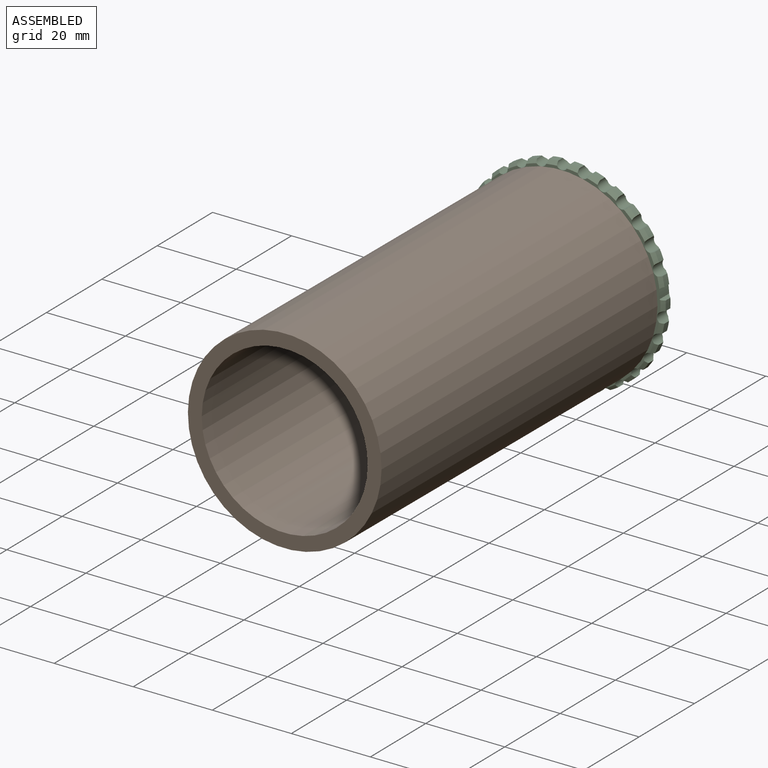
[diagram: assembled view]
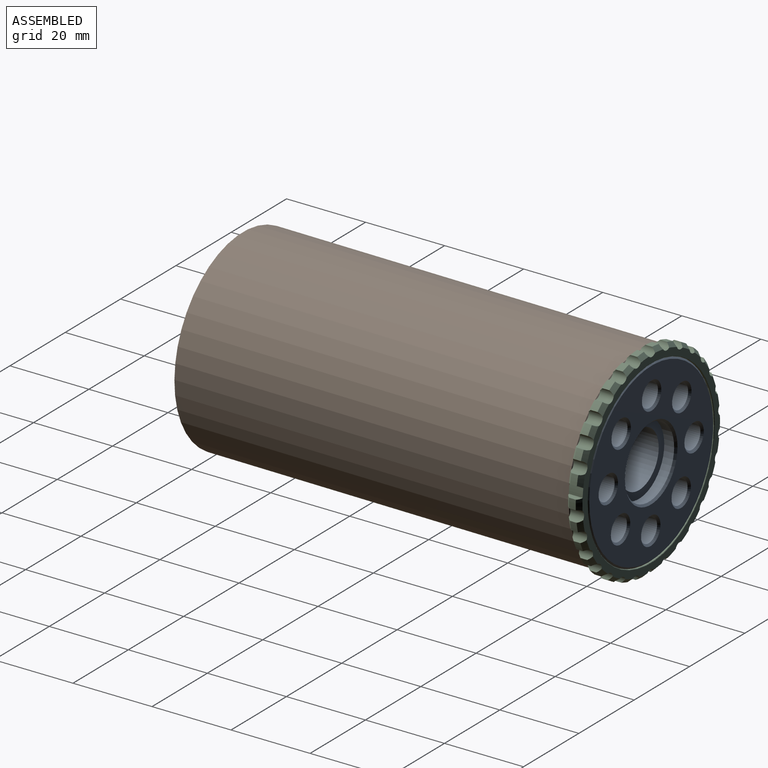
[diagram: assembled view, second angle]
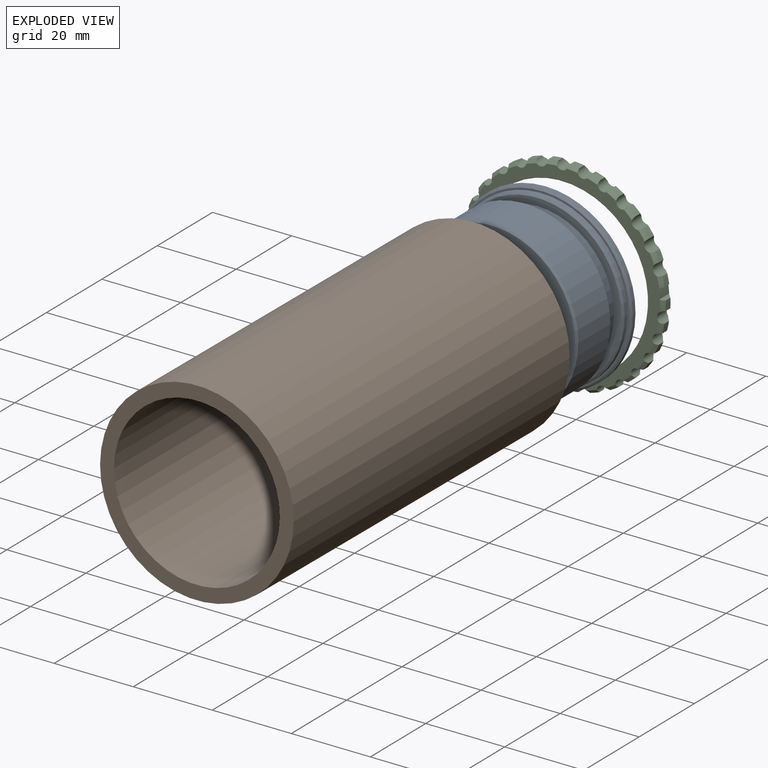
[diagram: exploded view]
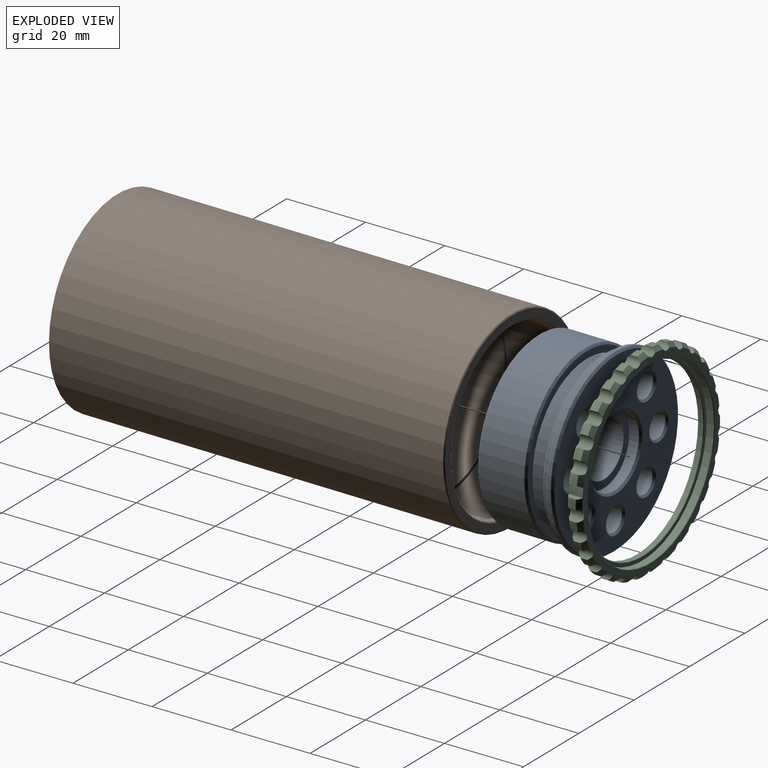
[diagram: exploded view, second angle]
ASSEMBLY  parts=3 mates=2
PART A: 42 faces, bbox 45.7x45.7x20 mm
  f0: cylinder r=19.5mm len=39mm, axis (0,0,1), area 490.1mm2, adj f1,f8
  f1: plane 42.44x42.44mm, normal (0,0,1), area 220mm2, adj f0,f39
  f2: cylinder r=21.72mm len=43.44mm, axis (0,0,1), area 1569.4mm2, adj f38,f39
  f3: plane 42.44x42.44mm, normal (0,0,-1), area 1260.7mm2, adj f9,f38
  f4: plane 44.74x44.74mm, normal (0,0,1), area 980.7mm2, adj f28,f29,f30,f31,f32,f33,f34,f35
  f5: cylinder r=22.87mm len=45.74mm, axis (0,0,1), area 143.7mm2, adj f37,f41
  f6: plane 44.74x44.74mm, normal (0,0,-1), area 69.5mm2, adj f7,f41
  f7: cylinder r=21.87mm len=43.74mm, axis (0,0,1), area 137.4mm2, adj f6,f40
  f8: plane 42.74x42.74mm, normal (0,0,-1), area 240.1mm2, adj f0,f40
  f9: cylinder r=7mm len=17mm, axis (0,0,1), area 747.7mm2, adj f3,f27
  f10: cylinder r=3mm len=14.5mm, axis (0,0,1), area 273.3mm2, adj f11,f35
  f11: plane 6x6mm, normal (0,0,1), area 28.3mm2, adj f10
  f12: cylinder r=3mm len=14.5mm, axis (0,0,1), area 273.3mm2, adj f13,f36
  f13: plane 6x6mm, normal (0,0,1), area 28.3mm2, adj f12
  f14: cylinder r=3mm len=14.5mm, axis (0,0,1), area 273.3mm2, adj f15,f34
  f15: plane 6x6mm, normal (0,0,1), area 28.3mm2, adj f14
  f16: cylinder r=3mm len=14.5mm, axis (0,0,1), area 273.3mm2, adj f17,f33
  f17: plane 6x6mm, normal (0,0,1), area 28.3mm2, adj f16
  f18: cylinder r=3mm len=14.5mm, axis (0,0,1), area 273.3mm2, adj f19,f32
  f19: plane 6x6mm, normal (0,0,1), area 28.3mm2, adj f18
  f20: cylinder r=3mm len=14.5mm, axis (0,0,1), area 273.3mm2, adj f21,f31
  f21: plane 6x6mm, normal (0,0,1), area 28.3mm2, adj f20
  f22: cylinder r=3mm len=14.5mm, axis (0,0,1), area 273.3mm2, adj f23,f30
  f23: plane 6x6mm, normal (0,0,1), area 28.3mm2, adj f22
  f24: cylinder r=3mm len=14.5mm, axis (0,0,1), area 273.3mm2, adj f25,f29
  f25: plane 6x6mm, normal (0,0,1), area 28.3mm2, adj f24
  f26: cylinder r=9mm len=18mm, axis (0,0,1), area 141.4mm2, adj f27,f28
  f27: plane 18x18mm, normal (0,0,1), area 100.5mm2, adj f9,f26
  f28: cone r=9mm half-angle=45deg, axis (0,0,1), area 41.1mm2, adj f4,f26
  f29: cone r=3mm half-angle=45deg, axis (0,0,1), area 14.4mm2, adj f4,f24
  f30: cone r=3mm half-angle=45deg, axis (0,0,1), area 14.4mm2, adj f4,f22
  f31: cone r=3mm half-angle=45deg, axis (0,0,1), area 14.4mm2, adj f4,f20
  f32: cone r=3mm half-angle=45deg, axis (0,0,1), area 14.4mm2, adj f4,f18
  f33: cone r=3mm half-angle=45deg, axis (0,0,1), area 14.4mm2, adj f4,f16
  f34: cone r=3mm half-angle=45deg, axis (0,0,1), area 14.4mm2, adj f4,f14
  f35: cone r=3mm half-angle=45deg, axis (0,0,1), area 14.4mm2, adj f4,f10
  f36: cone r=3mm half-angle=45deg, axis (0,0,1), area 14.4mm2, adj f4,f12
  f37: cone r=22.37mm half-angle=45deg, axis (0,0,-1), area 100.5mm2, adj f4,f5
  f38: cone r=21.72mm half-angle=45deg, axis (0,0,1), area 95.4mm2, adj f2,f3
  f39: cone r=21.22mm half-angle=45deg, axis (0,0,-1), area 95.4mm2, adj f1,f2
  f40: cone r=21.87mm half-angle=45deg, axis (0,0,1), area 96.1mm2, adj f7,f8
  f41: cone r=22.87mm half-angle=45deg, axis (0,0,1), area 100.5mm2, adj f5,f6
PART B: 8 faces, bbox 49x49x100 mm
  f0: cylinder r=21mm len=83.5mm, axis (0,0,-1), area 11017.6mm2, adj f3,f5
  f1: cylinder r=24.5mm len=99.75mm, axis (0,0,-1), area 15355.3mm2, adj f3,f7
  f2: plane 48.5x48.5mm, normal (0,0,1), area 330.4mm2, adj f6,f7
  f3: plane 49x49mm, normal (0,0,-1), area 500.3mm2, adj f0,f1
  f4: cylinder r=21.73mm len=43.45mm, axis (0,0,1), area 2218.2mm2, adj f5,f6
  f5: plane 43.45x43.45mm, normal (0,0,1), area 97.3mm2, adj f0,f4
  f6: cone r=21.73mm half-angle=45deg, axis (0,0,1), area 48.5mm2, adj f2,f4
  f7: cone r=24.25mm half-angle=45deg, axis (0,0,-1), area 54.1mm2, adj f1,f2
PART C: 130 faces, bbox 51.7x51.6x3.5 mm
  f0: cylinder r=25.85mm len=2.2mm, axis (0,0,1), area 4.1mm2, adj f30,f59,f128,f129
  f1: cylinder r=25.85mm len=2.36mm, axis (0,0,1), area 4.1mm2, adj f34,f61,f127,f128
  f2: cylinder r=25.85mm len=2.41mm, axis (0,0,1), area 4.1mm2, adj f32,f63,f108,f127
  f3: cylinder r=25.85mm len=2.4mm, axis (0,0,1), area 4.1mm2, adj f33,f67,f98,f126
  f4: cylinder r=25.85mm len=1.95mm, axis (0,0,1), area 4.1mm2, adj f31,f60,f125,f129
  f5: cylinder r=25.85mm len=1.79mm, axis (0,0,1), area 4.1mm2, adj f35,f64,f124,f125
  f6: cylinder r=25.85mm len=2.09mm, axis (0,0,1), area 4.1mm2, adj f36,f66,f123,f124
  f7: cylinder r=25.85mm len=2.29mm, axis (0,0,1), area 4.1mm2, adj f49,f65,f122,f123
  f8: cylinder r=25.85mm len=2.29mm, axis (0,0,1), area 4.1mm2, adj f38,f62,f121,f126
  f9: cylinder r=25.85mm len=2.09mm, axis (0,0,1), area 4.1mm2, adj f39,f68,f120,f121
  f10: cylinder r=25.85mm len=1.79mm, axis (0,0,1), area 4.1mm2, adj f40,f69,f119,f120
  f11: cylinder r=25.85mm len=1.95mm, axis (0,0,1), area 4.1mm2, adj f41,f71,f118,f119
  f12: cylinder r=25.85mm len=2.2mm, axis (0,0,1), area 4.1mm2, adj f42,f70,f117,f118
  f13: cylinder r=25.85mm len=2.36mm, axis (0,0,1), area 4.1mm2, adj f43,f72,f116,f117
  f14: cylinder r=25.85mm len=2.41mm, axis (0,0,1), area 4.1mm2, adj f44,f80,f115,f116
  f15: cylinder r=25.85mm len=2.36mm, axis (0,0,1), area 4.1mm2, adj f51,f73,f114,f115
  f16: cylinder r=25.85mm len=2.4mm, axis (0,0,1), area 4.1mm2, adj f46,f77,f112,f113
  f17: cylinder r=25.85mm len=2.29mm, axis (0,0,1), area 4.1mm2, adj f50,f76,f111,f112
  f18: cylinder r=25.85mm len=2.09mm, axis (0,0,1), area 4.1mm2, adj f48,f85,f104,f111
  f19: cylinder r=25.85mm len=2.36mm, axis (0,0,1), area 4.1mm2, adj f93,f94,f99,f110
  f20: cylinder r=25.85mm len=2.4mm, axis (0,0,1), area 4.1mm2, adj f47,f75,f107,f113
  f21: cylinder r=25.85mm len=2.2mm, axis (0,0,1), area 4.1mm2, adj f45,f74,f106,f114
  f22: cylinder r=25.85mm len=1.95mm, axis (0,0,1), area 4.1mm2, adj f52,f81,f105,f106
  f23: cylinder r=25.85mm len=1.79mm, axis (0,0,1), area 4.1mm2, adj f53,f82,f104,f105
  f24: cylinder r=25.85mm len=2.09mm, axis (0,0,1), area 4.1mm2, adj f54,f83,f101,f103
  f25: cylinder r=25.85mm len=1.79mm, axis (0,0,1), area 4.1mm2, adj f55,f84,f102,f103
  f26: cylinder r=25.85mm len=2.29mm, axis (0,0,1), area 4.1mm2, adj f56,f79,f101,f107
  f27: cylinder r=25.85mm len=1.95mm, axis (0,0,1), area 4.1mm2, adj f57,f87,f100,f102
  f28: cylinder r=25.85mm len=2.2mm, axis (0,0,1), area 4.1mm2, adj f58,f86,f99,f100
  f29: cylinder r=25.85mm len=2.4mm, axis (0,0,1), area 4.1mm2, adj f37,f78,f98,f122
  f30: cone r=24.85mm half-angle=45deg, axis (0,0,-1), area 3.6mm2, adj f0,f90,f128,f129
  f31: cone r=24.85mm half-angle=45deg, axis (0,0,-1), area 3.6mm2, adj f4,f90,f125,f129
  f32: cone r=24.85mm half-angle=45deg, axis (0,0,-1), area 3.6mm2, adj f2,f90,f108,f127
  f33: cone r=24.85mm half-angle=45deg, axis (0,0,-1), area 3.6mm2, adj f3,f90,f98,f126
  f34: cone r=24.85mm half-angle=45deg, axis (0,0,-1), area 3.6mm2, adj f1,f90,f127,f128
  f35: cone r=24.85mm half-angle=45deg, axis (0,0,-1), area 3.6mm2, adj f5,f90,f124,f125
  f36: cone r=24.85mm half-angle=45deg, axis (0,0,-1), area 3.6mm2, adj f6,f90,f123,f124
  f37: cone r=24.85mm half-angle=45deg, axis (0,0,-1), area 3.6mm2, adj f29,f90,f98,f122
  f38: cone r=24.85mm half-angle=45deg, axis (0,0,-1), area 3.6mm2, adj f8,f90,f121,f126
  f39: cone r=24.85mm half-angle=45deg, axis (0,0,-1), area 3.6mm2, adj f9,f90,f120,f121
  f40: cone r=24.85mm half-angle=45deg, axis (0,0,-1), area 3.6mm2, adj f10,f90,f119,f120
  f41: cone r=24.85mm half-angle=45deg, axis (0,0,-1), area 3.6mm2, adj f11,f90,f118,f119
  f42: cone r=24.85mm half-angle=45deg, axis (0,0,-1), area 3.6mm2, adj f12,f90,f117,f118
  f43: cone r=24.85mm half-angle=45deg, axis (0,0,-1), area 3.6mm2, adj f13,f90,f116,f117
  f44: cone r=24.85mm half-angle=45deg, axis (0,0,-1), area 3.6mm2, adj f14,f90,f115,f116
  f45: cone r=24.85mm half-angle=45deg, axis (0,0,-1), area 3.6mm2, adj f21,f90,f106,f114
  f46: cone r=24.85mm half-angle=45deg, axis (0,0,-1), area 3.6mm2, adj f16,f90,f112,f113
  f47: cone r=24.85mm half-angle=45deg, axis (0,0,-1), area 3.6mm2, adj f20,f90,f107,f113
  f48: cone r=24.85mm half-angle=45deg, axis (0,0,-1), area 3.6mm2, adj f18,f90,f104,f111
  f49: cone r=24.85mm half-angle=45deg, axis (0,0,-1), area 3.6mm2, adj f7,f90,f122,f123
  f50: cone r=24.85mm half-angle=45deg, axis (0,0,-1), area 3.6mm2, adj f17,f90,f111,f112
  f51: cone r=24.85mm half-angle=45deg, axis (0,0,-1), area 3.6mm2, adj f15,f90,f114,f115
  f52: cone r=24.85mm half-angle=45deg, axis (0,0,-1), area 3.6mm2, adj f22,f90,f105,f106
  f53: cone r=24.85mm half-angle=45deg, axis (0,0,-1), area 3.6mm2, adj f23,f90,f104,f105
  f54: cone r=24.85mm half-angle=45deg, axis (0,0,-1), area 3.6mm2, adj f24,f90,f101,f103
  f55: cone r=24.85mm half-angle=45deg, axis (0,0,-1), area 3.6mm2, adj f25,f90,f102,f103
  f56: cone r=24.85mm half-angle=45deg, axis (0,0,-1), area 3.6mm2, adj f26,f90,f101,f107
  f57: cone r=24.85mm half-angle=45deg, axis (0,0,-1), area 3.6mm2, adj f27,f90,f100,f102
  f58: cone r=24.85mm half-angle=45deg, axis (0,0,-1), area 3.6mm2, adj f28,f90,f99,f100
  f59: cone r=25.85mm half-angle=45deg, axis (0,0,1), area 2.8mm2, adj f0,f91,f128,f129
  f60: cone r=25.85mm half-angle=45deg, axis (0,0,1), area 2.8mm2, adj f4,f91,f125,f129
  f61: cone r=25.85mm half-angle=45deg, axis (0,0,1), area 2.8mm2, adj f1,f91,f127,f128
  f62: cone r=25.85mm half-angle=45deg, axis (0,0,1), area 2.8mm2, adj f8,f91,f121,f126
  f63: cone r=25.85mm half-angle=45deg, axis (0,0,1), area 2.8mm2, adj f2,f91,f108,f127
  f64: cone r=25.85mm half-angle=45deg, axis (0,0,1), area 2.8mm2, adj f5,f91,f124,f125
  f65: cone r=25.85mm half-angle=45deg, axis (0,0,1), area 2.8mm2, adj f7,f91,f122,f123
  f66: cone r=25.85mm half-angle=45deg, axis (0,0,1), area 2.8mm2, adj f6,f91,f123,f124
  f67: cone r=25.85mm half-angle=45deg, axis (0,0,1), area 2.8mm2, adj f3,f91,f98,f126
  f68: cone r=25.85mm half-angle=45deg, axis (0,0,1), area 2.8mm2, adj f9,f91,f120,f121
  f69: cone r=25.85mm half-angle=45deg, axis (0,0,1), area 2.8mm2, adj f10,f91,f119,f120
  f70: cone r=25.85mm half-angle=45deg, axis (0,0,1), area 2.8mm2, adj f12,f91,f117,f118
  f71: cone r=25.85mm half-angle=45deg, axis (0,0,1), area 2.8mm2, adj f11,f91,f118,f119
  f72: cone r=25.85mm half-angle=45deg, axis (0,0,1), area 2.8mm2, adj f13,f91,f116,f117
  f73: cone r=25.85mm half-angle=45deg, axis (0,0,1), area 2.8mm2, adj f15,f91,f114,f115
  f74: cone r=25.85mm half-angle=45deg, axis (0,0,1), area 2.8mm2, adj f21,f91,f106,f114
  f75: cone r=25.85mm half-angle=45deg, axis (0,0,1), area 2.8mm2, adj f20,f91,f107,f113
  f76: cone r=25.85mm half-angle=45deg, axis (0,0,1), area 2.8mm2, adj f17,f91,f111,f112
  f77: cone r=25.85mm half-angle=45deg, axis (0,0,1), area 2.8mm2, adj f16,f91,f112,f113
  f78: cone r=25.85mm half-angle=45deg, axis (0,0,1), area 2.8mm2, adj f29,f91,f98,f122
  f79: cone r=25.85mm half-angle=45deg, axis (0,0,1), area 2.8mm2, adj f26,f91,f101,f107
  f80: cone r=25.85mm half-angle=45deg, axis (0,0,1), area 2.8mm2, adj f14,f91,f115,f116
  f81: cone r=25.85mm half-angle=45deg, axis (0,0,1), area 2.8mm2, adj f22,f91,f105,f106
  f82: cone r=25.85mm half-angle=45deg, axis (0,0,1), area 2.8mm2, adj f23,f91,f104,f105
  f83: cone r=25.85mm half-angle=45deg, axis (0,0,1), area 2.8mm2, adj f24,f91,f101,f103
  f84: cone r=25.85mm half-angle=45deg, axis (0,0,1), area 2.8mm2, adj f25,f91,f102,f103
  f85: cone r=25.85mm half-angle=45deg, axis (0,0,1), area 2.8mm2, adj f18,f91,f104,f111
  f86: cone r=25.85mm half-angle=45deg, axis (0,0,1), area 2.8mm2, adj f28,f91,f99,f100
  f87: cone r=25.85mm half-angle=45deg, axis (0,0,1), area 2.8mm2, adj f27,f91,f100,f102
  f88: plane 45.7x45.7mm, normal (0,0,1), area 126.7mm2, adj f89,f96
  f89: cylinder r=22.85mm len=45.7mm, axis (0,0,1), area 272.8mm2, adj f88,f97
  f90: plane 49.7x49.65mm, normal (0,0,1), area 263.4mm2, adj f30,f31,f32,f33,f34,f35,f36,f37
  f91: plane 50.1x50.04mm, normal (0,0,-1), area 421.7mm2, adj f59,f60,f61,f62,f63,f64,f65,f66
  f92: cylinder r=21.85mm len=43.7mm, axis (0,0,1), area 178.5mm2, adj f95,f96
  f93: cone r=24.85mm half-angle=45deg, axis (0,0,-1), area 3.6mm2, adj f19,f90,f99,f110
  f94: cone r=25.85mm half-angle=45deg, axis (0,0,1), area 2.8mm2, adj f19,f91,f99,f110
  f95: cone r=21.95mm half-angle=45deg, axis (0,0,-1), area 19.5mm2, adj f91,f92
  f96: cone r=21.85mm half-angle=45deg, axis (0,0,1), area 19.5mm2, adj f88,f92
  f97: cone r=22.85mm half-angle=45deg, axis (0,0,1), area 20.3mm2, adj f89,f90
  f98: cylinder r=1.5mm len=3.5mm, axis (0,0,1), area 14.4mm2, adj f3,f29,f33,f37,f67,f78,f90,f91
  f99: cylinder r=1.5mm len=3.5mm, axis (0,0,1), area 14.4mm2, adj f19,f28,f58,f86,f90,f91,f93,f94
  f100: cylinder r=1.5mm len=3.5mm, axis (0,0,1), area 14.4mm2, adj f27,f28,f57,f58,f86,f87,f90,f91
  f101: cylinder r=1.5mm len=3.5mm, axis (0,0,1), area 14.4mm2, adj f24,f26,f54,f56,f79,f83,f90,f91
  f102: cylinder r=1.5mm len=3.5mm, axis (0,0,1), area 14.4mm2, adj f25,f27,f55,f57,f84,f87,f90,f91
  f103: cylinder r=1.5mm len=3.5mm, axis (0,0,1), area 14.4mm2, adj f24,f25,f54,f55,f83,f84,f90,f91
  f104: cylinder r=1.5mm len=3.5mm, axis (0,0,1), area 14.4mm2, adj f18,f23,f48,f53,f82,f85,f90,f91
  f105: cylinder r=1.5mm len=3.5mm, axis (0,0,1), area 14.4mm2, adj f22,f23,f52,f53,f81,f82,f90,f91
  f106: cylinder r=1.5mm len=3.5mm, axis (0,0,1), area 14.4mm2, adj f21,f22,f45,f52,f74,f81,f90,f91
  f107: cylinder r=1.5mm len=3.5mm, axis (0,0,1), area 14.4mm2, adj f20,f26,f47,f56,f75,f79,f90,f91
  f108: cylinder r=1.5mm len=3.5mm, axis (0,0,1), area 2.9mm2, adj f2,f32,f63,f91,f109
  f109: cylinder r=24.85mm len=3.5mm, axis (0,0,1), area 7.7mm2, adj f90,f91,f108,f110
  f110: cylinder r=1.5mm len=3.5mm, axis (0,0,1), area 2.9mm2, adj f19,f91,f93,f94,f109
  f111: cylinder r=1.5mm len=3.5mm, axis (0,0,1), area 14.4mm2, adj f17,f18,f48,f50,f76,f85,f90,f91
  f112: cylinder r=1.5mm len=3.5mm, axis (0,0,1), area 14.4mm2, adj f16,f17,f46,f50,f76,f77,f90,f91
  f113: cylinder r=1.5mm len=3.5mm, axis (0,0,1), area 14.4mm2, adj f16,f20,f46,f47,f75,f77,f90,f91
  f114: cylinder r=1.5mm len=3.5mm, axis (0,0,1), area 14.4mm2, adj f15,f21,f45,f51,f73,f74,f90,f91
  f115: cylinder r=1.5mm len=3.5mm, axis (0,0,1), area 14.4mm2, adj f14,f15,f44,f51,f73,f80,f90,f91
  f116: cylinder r=1.5mm len=3.5mm, axis (0,0,1), area 14.4mm2, adj f13,f14,f43,f44,f72,f80,f90,f91
  f117: cylinder r=1.5mm len=3.5mm, axis (0,0,1), area 14.4mm2, adj f12,f13,f42,f43,f70,f72,f90,f91
  f118: cylinder r=1.5mm len=3.5mm, axis (0,0,1), area 14.4mm2, adj f11,f12,f41,f42,f70,f71,f90,f91
  f119: cylinder r=1.5mm len=3.5mm, axis (0,0,1), area 14.4mm2, adj f10,f11,f40,f41,f69,f71,f90,f91
  f120: cylinder r=1.5mm len=3.5mm, axis (0,0,1), area 14.4mm2, adj f9,f10,f39,f40,f68,f69,f90,f91
  f121: cylinder r=1.5mm len=3.5mm, axis (0,0,1), area 14.4mm2, adj f8,f9,f38,f39,f62,f68,f90,f91
  f122: cylinder r=1.5mm len=3.5mm, axis (0,0,1), area 14.4mm2, adj f7,f29,f37,f49,f65,f78,f90,f91
  f123: cylinder r=1.5mm len=3.5mm, axis (0,0,1), area 14.4mm2, adj f6,f7,f36,f49,f65,f66,f90,f91
  f124: cylinder r=1.5mm len=3.5mm, axis (0,0,1), area 14.4mm2, adj f5,f6,f35,f36,f64,f66,f90,f91
  f125: cylinder r=1.5mm len=3.5mm, axis (0,0,1), area 14.4mm2, adj f4,f5,f31,f35,f60,f64,f90,f91
  f126: cylinder r=1.5mm len=3.5mm, axis (0,0,1), area 14.4mm2, adj f3,f8,f33,f38,f62,f67,f90,f91
  f127: cylinder r=1.5mm len=3.5mm, axis (0,0,1), area 14.4mm2, adj f1,f2,f32,f34,f61,f63,f90,f91
  f128: cylinder r=1.5mm len=3.5mm, axis (0,0,1), area 14.4mm2, adj f0,f1,f30,f34,f59,f61,f90,f91
  f129: cylinder r=1.5mm len=3.5mm, axis (0,0,1), area 14.4mm2, adj f0,f4,f30,f31,f59,f60,f90,f91
PLACE A rot(axis=(-1,0,0),90.4deg) t=(-8.49,20.36,-6.95)mm
PLACE B rot(axis=(-1,0,0),90.4deg) t=(-8.49,-73.13,-6.3)mm
PLACE C rot(axis=(-1,0,0),90.4deg) t=(-8.49,29.36,-7.01)mm
MATE revolute C.f96 <-> A.f0  axis (0,1,-0.01) through (-8.49,28.36,-7.01)mm
MATE revolute C.f96 <-> B.f0  axis (0,-1,0.01) through (-8.49,26.86,-7)mm
